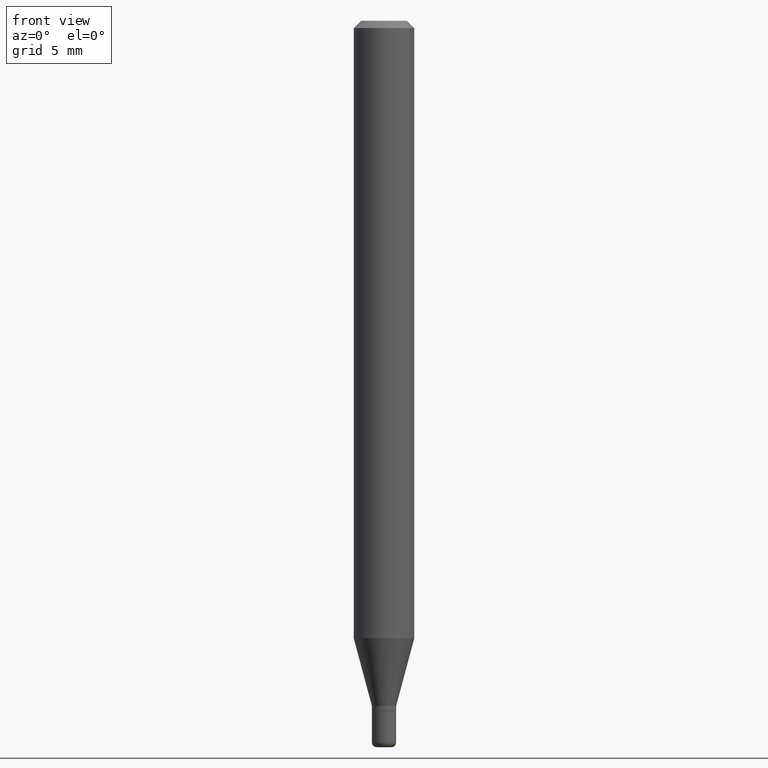
[diagram: clean part render]
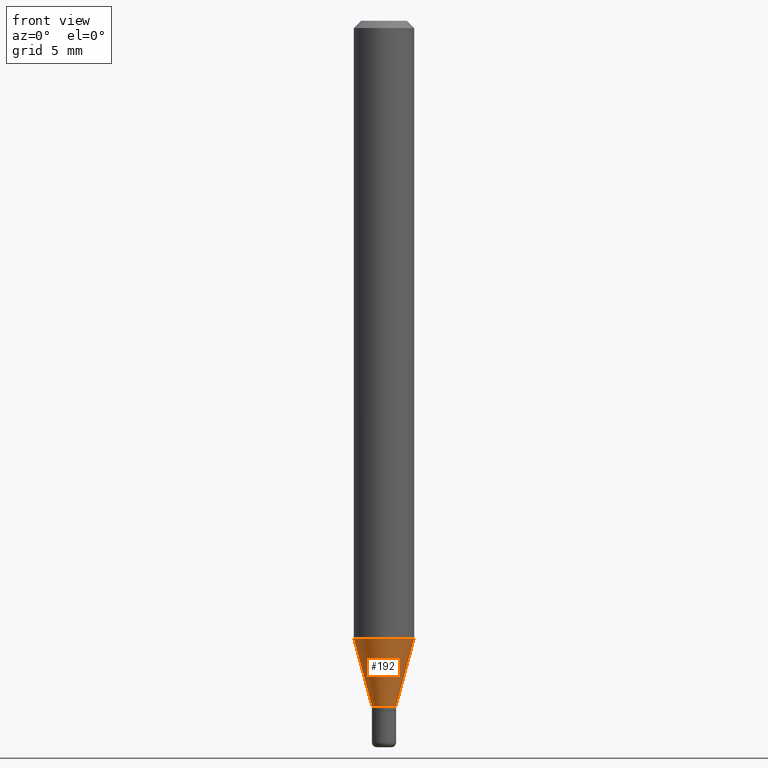
[diagram: same view with one face highlighted and labeled with its STEP entity id]
A machine part, front view. The second image highlights one B-rep face of the part: STEP entity #192.
In plain terms, the highlighted conical surface has half-angle 15 deg.
Its self-contained STEP definition (entity closure, byte-faithful):
#17 = VERTEX_POINT ( 'NONE', #331 ) ;
#23 = VECTOR ( 'NONE', #478, 39.37007874015748143 ) ;
#28 = CARTESIAN_POINT ( 'NONE',  ( -0.06250000000000000000, -4.007717418978941084E-15, -1.275048094716166869 ) ) ;
#30 = ORIENTED_EDGE ( 'NONE', *, *, #110, .T. ) ;
#32 = CIRCLE ( 'NONE', #120, 0.02499999999999998057 ) ;
#34 = ORIENTED_EDGE ( 'NONE', *, *, #92, .T. ) ;
#63 = DIRECTION ( 'NONE',  ( 1.000000000000000000, -6.982962677686260400E-15, 0.000000000000000000 ) ) ;
#78 = EDGE_LOOP ( 'NONE', ( #364, #34, #30, #238 ) ) ;
#92 = EDGE_CURVE ( 'NONE', #248, #513, #32, .T. ) ;
#100 = DIRECTION ( 'NONE',  ( 0.2588190451025205174, 1.565188264969628476E-15, 0.9659258262890684232 ) ) ;
#110 = EDGE_CURVE ( 'NONE', #513, #17, #260, .T. ) ;
#120 = AXIS2_PLACEMENT_3D ( 'NONE', #453, #244, #216 ) ;
#138 = DIRECTION ( 'NONE',  ( -2.445468806185136597E-29, 3.491481338843145583E-15, 1.000000000000000000 ) ) ;
#172 = FACE_OUTER_BOUND ( 'NONE', #78, .T. ) ;
#183 = AXIS2_PLACEMENT_3D ( 'NONE', #254, #138, #300 ) ;
#192 = ADVANCED_FACE ( 'NONE', ( #172 ), #323, .T. ) ;
#216 = DIRECTION ( 'NONE',  ( 1.000000000000000000, -6.982962677686260400E-15, 0.000000000000000000 ) ) ;
#218 = EDGE_CURVE ( 'NONE', #250, #17, #431, .T. ) ;
#238 = ORIENTED_EDGE ( 'NONE', *, *, #218, .F. ) ;
#244 = DIRECTION ( 'NONE',  ( -2.445468806185136597E-29, 3.491481338843145583E-15, 1.000000000000000000 ) ) ;
#248 = VERTEX_POINT ( 'NONE', #342 ) ;
#250 = VERTEX_POINT ( 'NONE', #28 ) ;
#254 = CARTESIAN_POINT ( 'NONE',  ( 3.118090342014177952E-29, -4.451806628829005278E-15, -1.275048094716166869 ) ) ;
#260 = LINE ( 'NONE', #298, #454 ) ;
#279 = EDGE_CURVE ( 'NONE', #248, #250, #359, .T. ) ;
#290 = CARTESIAN_POINT ( 'NONE',  ( 0.02499999999999998057, -5.115020161405207405E-15, -1.415000000000000036 ) ) ;
#298 = CARTESIAN_POINT ( 'NONE',  ( 0.02499999999999998057, -5.115020161405207405E-15, -1.415000000000000036 ) ) ;
#300 = DIRECTION ( 'NONE',  ( 1.000000000000000000, -6.982962677686262766E-15, 0.000000000000000000 ) ) ;
#319 = CARTESIAN_POINT ( 'NONE',  ( -0.02499999999999998057, -4.762810410523025533E-15, -1.415000000000000036 ) ) ;
#323 = CONICAL_SURFACE ( 'NONE', #370, 0.02499999999999998057, 0.2617993877991491858 ) ;
#331 = CARTESIAN_POINT ( 'NONE',  ( 0.06250000000000000000, -4.888241796184395369E-15, -1.275048094716166869 ) ) ;
#338 = CARTESIAN_POINT ( 'NONE',  ( 3.460338360751968441E-29, -4.940446094463050737E-15, -1.415000000000000036 ) ) ;
#342 = CARTESIAN_POINT ( 'NONE',  ( -0.02499999999999998057, -4.385263914750983308E-15, -1.415000000000000036 ) ) ;
#359 = LINE ( 'NONE', #319, #23 ) ;
#364 = ORIENTED_EDGE ( 'NONE', *, *, #279, .F. ) ;
#370 = AXIS2_PLACEMENT_3D ( 'NONE', #338, #382, #63 ) ;
#382 = DIRECTION ( 'NONE',  ( -2.445468806185136597E-29, 3.491481338843145583E-15, 1.000000000000000000 ) ) ;
#431 = CIRCLE ( 'NONE', #183, 0.06250000000000000000 ) ;
#453 = CARTESIAN_POINT ( 'NONE',  ( 3.460338360751968441E-29, -4.940446094463050737E-15, -1.415000000000000036 ) ) ;
#454 = VECTOR ( 'NONE', #100, 39.37007874015748143 ) ;
#478 = DIRECTION ( 'NONE',  ( -0.2588190451025205174, 5.211531920934544731E-15, 0.9659258262890684232 ) ) ;
#513 = VERTEX_POINT ( 'NONE', #290 ) ;